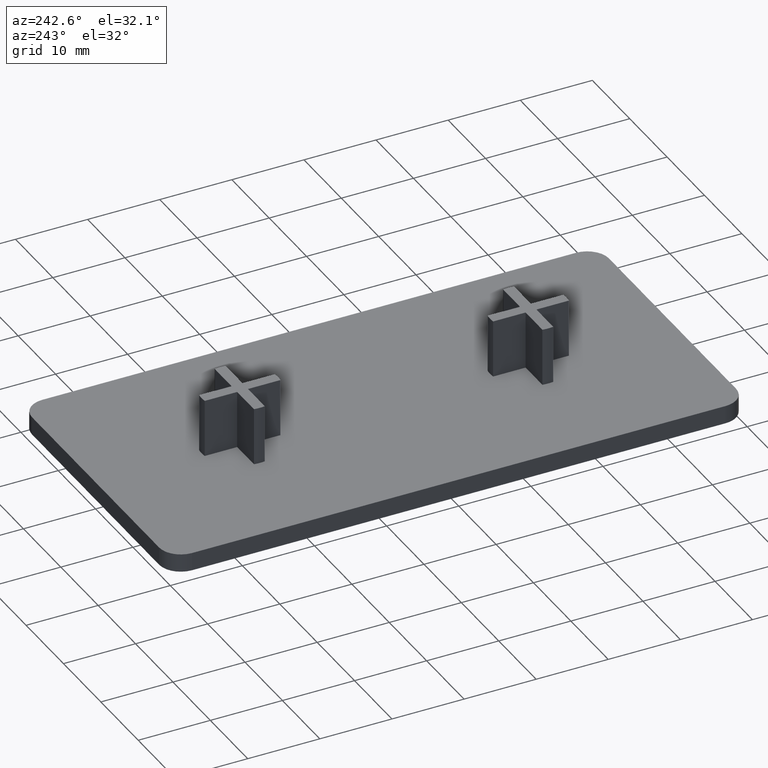
[diagram: clean part render]
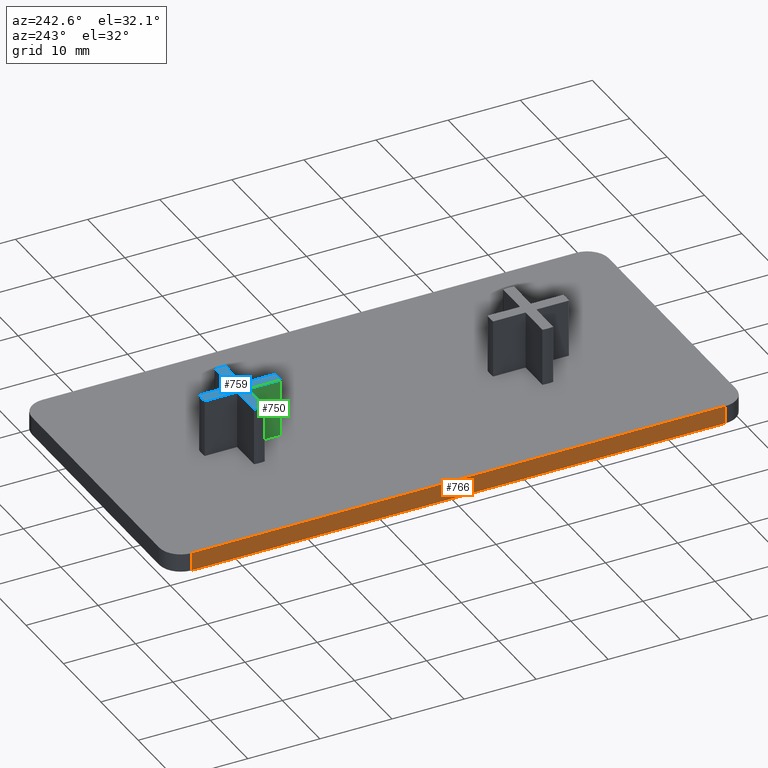
[diagram: same view with three faces highlighted in distinct colors, each labeled with its STEP entity id]
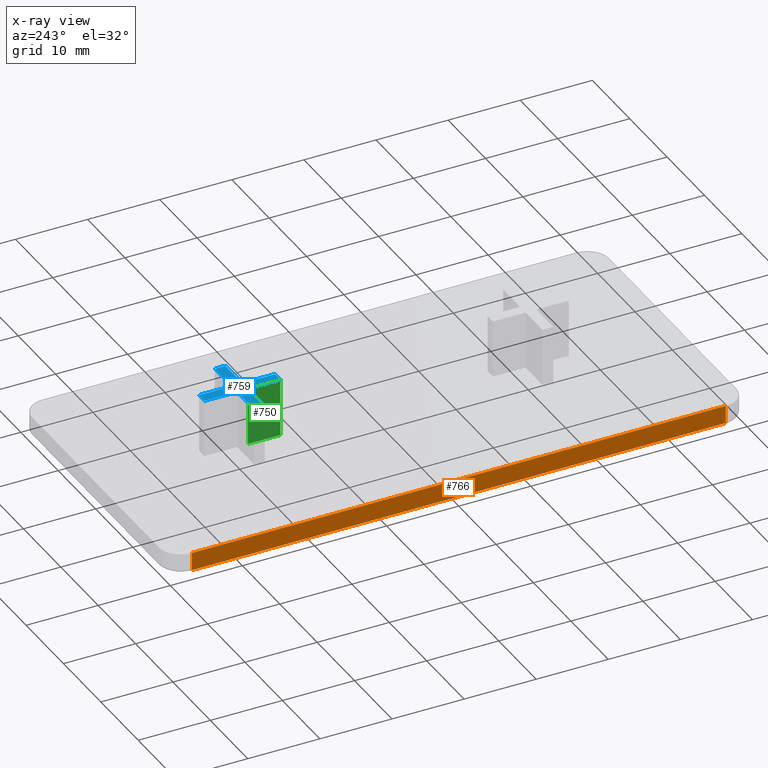
[diagram: x-ray of the same camera — body ghosted, the three highlighted faces saturated]
A machine part, auxiliary view with three faces highlighted in distinct colors.
The next image is the same camera in x-ray (body ghosted, the three faces saturated) — at least one of them is partly hidden behind the body in this view.
Their STEP definitions:

[orange] entity #766 — the highlighted planar face has unit normal (-1, 0, 0).
#132=FACE_OUTER_BOUND('',#168,.T.);
#168=EDGE_LOOP('',(#662,#663,#664,#665));
#242=LINE('',#1267,#334);
#243=LINE('',#1270,#335);
#244=LINE('',#1272,#336);
#245=LINE('',#1273,#337);
#334=VECTOR('',#1022,2.5);
#335=VECTOR('',#1025,74.);
#336=VECTOR('',#1026,74.);
#337=VECTOR('',#1027,2.5);
#418=VERTEX_POINT('',#1263);
#419=VERTEX_POINT('',#1265);
#420=VERTEX_POINT('',#1269);
#421=VERTEX_POINT('',#1271);
#512=EDGE_CURVE('',#418,#419,#242,.T.);
#513=EDGE_CURVE('',#420,#418,#243,.T.);
#514=EDGE_CURVE('',#421,#419,#244,.T.);
#515=EDGE_CURVE('',#420,#421,#245,.T.);
#662=ORIENTED_EDGE('',*,*,#513,.T.);
#663=ORIENTED_EDGE('',*,*,#512,.T.);
#664=ORIENTED_EDGE('',*,*,#514,.F.);
#665=ORIENTED_EDGE('',*,*,#515,.F.);
#731=PLANE('',#826);
#766=ADVANCED_FACE('',(#132),#731,.T.);
#826=AXIS2_PLACEMENT_3D('',#1268,#1023,#1024);
#1022=DIRECTION('',(0.,0.,1.));
#1023=DIRECTION('center_axis',(-1.,6.00120553851436E-17,0.));
#1024=DIRECTION('ref_axis',(0.,-1.,0.));
#1025=DIRECTION('',(-6.00120553851436E-17,-1.,0.));
#1026=DIRECTION('',(-6.00120553851436E-17,-1.,0.));
#1027=DIRECTION('',(0.,0.,1.));
#1263=CARTESIAN_POINT('',(-20.,-17.,0.));
#1265=CARTESIAN_POINT('',(-20.,-17.,2.5));
#1267=CARTESIAN_POINT('',(-20.,-17.,0.));
#1268=CARTESIAN_POINT('Origin',(-20.,57.,0.));
#1269=CARTESIAN_POINT('',(-20.,57.,0.));
#1270=CARTESIAN_POINT('',(-20.,57.,0.));
#1271=CARTESIAN_POINT('',(-20.,57.,2.5));
#1272=CARTESIAN_POINT('',(-20.,57.,2.5));
#1273=CARTESIAN_POINT('',(-20.,57.,0.));

[blue] entity #759 — the highlighted planar face has unit normal (0, 0, 1).
#61=CIRCLE('',#796,5.3);
#63=CIRCLE('',#801,5.29999999999997);
#65=CIRCLE('',#806,5.30000000000003);
#67=CIRCLE('',#811,5.30000000000001);
#125=FACE_OUTER_BOUND('',#161,.T.);
#161=EDGE_LOOP('',(#626,#627,#628,#629,#630,#631,#632,#633,#634,#635,#636,
#637));
#204=LINE('',#1163,#296);
#209=LINE('',#1176,#301);
#212=LINE('',#1182,#304);
#216=LINE('',#1194,#308);
#218=LINE('',#1199,#310);
#222=LINE('',#1211,#314);
#225=LINE('',#1217,#317);
#229=LINE('',#1227,#321);
#296=VECTOR('',#920,4.49666560779321);
#301=VECTOR('',#933,4.4966656077932);
#304=VECTOR('',#938,4.4966656077932);
#308=VECTOR('',#950,4.49666560779319);
#310=VECTOR('',#954,4.4966656077932);
#314=VECTOR('',#966,4.4966656077932);
#317=VECTOR('',#971,4.49666560779321);
#321=VECTOR('',#983,4.49666560779321);
#384=VERTEX_POINT('',#1160);
#385=VERTEX_POINT('',#1162);
#387=VERTEX_POINT('',#1168);
#389=VERTEX_POINT('',#1174);
#391=VERTEX_POINT('',#1180);
#393=VERTEX_POINT('',#1186);
#395=VERTEX_POINT('',#1192);
#397=VERTEX_POINT('',#1198);
#399=VERTEX_POINT('',#1204);
#401=VERTEX_POINT('',#1210);
#403=VERTEX_POINT('',#1216);
#405=VERTEX_POINT('',#1222);
#460=EDGE_CURVE('',#385,#384,#204,.T.);
#464=EDGE_CURVE('',#384,#387,#61,.T.);
#467=EDGE_CURVE('',#387,#389,#209,.T.);
#470=EDGE_CURVE('',#389,#391,#212,.T.);
#473=EDGE_CURVE('',#391,#393,#63,.T.);
#476=EDGE_CURVE('',#393,#395,#216,.T.);
#478=EDGE_CURVE('',#397,#385,#218,.T.);
#481=EDGE_CURVE('',#399,#397,#65,.T.);
#484=EDGE_CURVE('',#401,#399,#222,.T.);
#487=EDGE_CURVE('',#403,#401,#225,.T.);
#490=EDGE_CURVE('',#405,#403,#67,.T.);
#493=EDGE_CURVE('',#395,#405,#229,.T.);
#626=ORIENTED_EDGE('',*,*,#493,.T.);
#627=ORIENTED_EDGE('',*,*,#490,.T.);
#628=ORIENTED_EDGE('',*,*,#487,.T.);
#629=ORIENTED_EDGE('',*,*,#484,.T.);
#630=ORIENTED_EDGE('',*,*,#481,.T.);
#631=ORIENTED_EDGE('',*,*,#478,.T.);
#632=ORIENTED_EDGE('',*,*,#460,.T.);
#633=ORIENTED_EDGE('',*,*,#464,.T.);
#634=ORIENTED_EDGE('',*,*,#467,.T.);
#635=ORIENTED_EDGE('',*,*,#470,.T.);
#636=ORIENTED_EDGE('',*,*,#473,.T.);
#637=ORIENTED_EDGE('',*,*,#476,.T.);
#727=PLANE('',#813);
#759=ADVANCED_FACE('',(#125),#727,.T.);
#796=AXIS2_PLACEMENT_3D('',#1170,#927,#928);
#801=AXIS2_PLACEMENT_3D('',#1188,#944,#945);
#806=AXIS2_PLACEMENT_3D('',#1205,#960,#961);
#811=AXIS2_PLACEMENT_3D('',#1223,#977,#978);
#813=AXIS2_PLACEMENT_3D('',#1228,#984,#985);
#920=DIRECTION('',(-1.,-1.58015471403667E-14,0.));
#927=DIRECTION('center_axis',(0.,0.,1.));
#928=DIRECTION('ref_axis',(-0.989936907130794,0.141509433962252,0.));
#933=DIRECTION('',(1.,0.,0.));
#938=DIRECTION('',(1.77767405329125E-14,-1.,0.));
#944=DIRECTION('center_axis',(0.,0.,1.));
#945=DIRECTION('ref_axis',(-0.141509433962246,-0.989936907130795,0.));
#950=DIRECTION('',(0.,1.,0.));
#954=DIRECTION('',(0.,-1.,0.));
#960=DIRECTION('center_axis',(0.,0.,1.));
#961=DIRECTION('ref_axis',(0.141509433962264,0.989936907130793,0.));
#966=DIRECTION('',(9.87596696272919E-16,1.,0.));
#971=DIRECTION('',(-1.,0.,0.));
#977=DIRECTION('center_axis',(0.,0.,1.));
#978=DIRECTION('ref_axis',(0.989936907130792,-0.141509433962267,0.));
#983=DIRECTION('',(1.,0.,0.));
#984=DIRECTION('center_axis',(0.,0.,1.));
#985=DIRECTION('ref_axis',(1.,0.,0.));
#1160=CARTESIAN_POINT('',(-5.24666560779321,40.7499999999999,10.5));
#1162=CARTESIAN_POINT('',(-0.750000000000002,40.75,10.5));
#1163=CARTESIAN_POINT('',(-0.750000000000002,40.75,10.5));
#1168=CARTESIAN_POINT('',(-5.2466656077932,39.25,10.5));
#1170=CARTESIAN_POINT('Origin',(0.,40.,10.5));
#1174=CARTESIAN_POINT('',(-0.750000000000002,39.25,10.5));
#1176=CARTESIAN_POINT('',(-5.2466656077932,39.25,10.5));
#1180=CARTESIAN_POINT('',(-0.749999999999922,34.7533343922068,10.5));
#1182=CARTESIAN_POINT('',(-0.750000000000002,39.25,10.5));
#1186=CARTESIAN_POINT('',(0.749999999999997,34.7533343922068,10.5));
#1188=CARTESIAN_POINT('Origin',(-2.22044604925031E-14,40.,10.5));
#1192=CARTESIAN_POINT('',(0.749999999999997,39.25,10.5));
#1194=CARTESIAN_POINT('',(0.749999999999997,34.7533343922068,10.5));
#1198=CARTESIAN_POINT('',(-0.750000000000002,45.2466656077932,10.5));
#1199=CARTESIAN_POINT('',(-0.750000000000002,45.2466656077932,10.5));
#1204=CARTESIAN_POINT('',(0.750000000000002,45.2466656077932,10.5));
#1205=CARTESIAN_POINT('Origin',(0.,40.,10.5));
#1210=CARTESIAN_POINT('',(0.749999999999997,40.75,10.5));
#1211=CARTESIAN_POINT('',(0.749999999999997,40.75,10.5));
#1216=CARTESIAN_POINT('',(5.24666560779321,40.75,10.5));
#1217=CARTESIAN_POINT('',(5.24666560779321,40.75,10.5));
#1222=CARTESIAN_POINT('',(5.24666560779321,39.25,10.5));
#1223=CARTESIAN_POINT('Origin',(0.,40.,10.5));
#1227=CARTESIAN_POINT('',(0.749999999999997,39.25,10.5));
#1228=CARTESIAN_POINT('Origin',(1.21593726439274E-14,40.,10.5));

[green] entity #750 — the highlighted planar face has unit normal (-1, -0, 0).
#116=FACE_OUTER_BOUND('',#152,.T.);
#152=EDGE_LOOP('',(#590,#591,#592,#593));
#208=LINE('',#1175,#300);
#210=LINE('',#1179,#302);
#211=LINE('',#1181,#303);
#212=LINE('',#1182,#304);
#300=VECTOR('',#932,8.);
#302=VECTOR('',#936,4.4966656077932);
#303=VECTOR('',#937,8.);
#304=VECTOR('',#938,4.4966656077932);
#388=VERTEX_POINT('',#1172);
#389=VERTEX_POINT('',#1174);
#390=VERTEX_POINT('',#1178);
#391=VERTEX_POINT('',#1180);
#466=EDGE_CURVE('',#388,#389,#208,.T.);
#468=EDGE_CURVE('',#390,#388,#210,.T.);
#469=EDGE_CURVE('',#390,#391,#211,.T.);
#470=EDGE_CURVE('',#389,#391,#212,.T.);
#590=ORIENTED_EDGE('',*,*,#468,.F.);
#591=ORIENTED_EDGE('',*,*,#469,.T.);
#592=ORIENTED_EDGE('',*,*,#470,.F.);
#593=ORIENTED_EDGE('',*,*,#466,.F.);
#721=PLANE('',#798);
#750=ADVANCED_FACE('',(#116),#721,.T.);
#798=AXIS2_PLACEMENT_3D('',#1177,#934,#935);
#932=DIRECTION('',(0.,0.,1.));
#934=DIRECTION('center_axis',(-1.,-1.77767405329125E-14,0.));
#935=DIRECTION('ref_axis',(1.77746706242488E-14,-1.,0.));
#936=DIRECTION('',(-1.77767405329125E-14,1.,0.));
#937=DIRECTION('',(0.,0.,1.));
#938=DIRECTION('',(1.77767405329125E-14,-1.,0.));
#1172=CARTESIAN_POINT('',(-0.750000000000002,39.25,2.5));
#1174=CARTESIAN_POINT('',(-0.750000000000002,39.25,10.5));
#1175=CARTESIAN_POINT('',(-0.750000000000002,39.25,0.));
#1177=CARTESIAN_POINT('Origin',(-0.750000000000002,39.25,0.));
#1178=CARTESIAN_POINT('',(-0.749999999999922,34.7533343922068,2.5));
#1179=CARTESIAN_POINT('',(-0.749999999999831,29.625,2.5));
#1180=CARTESIAN_POINT('',(-0.749999999999922,34.7533343922068,10.5));
#1181=CARTESIAN_POINT('',(-0.749999999999922,34.7533343922068,0.));
#1182=CARTESIAN_POINT('',(-0.750000000000002,39.25,10.5));